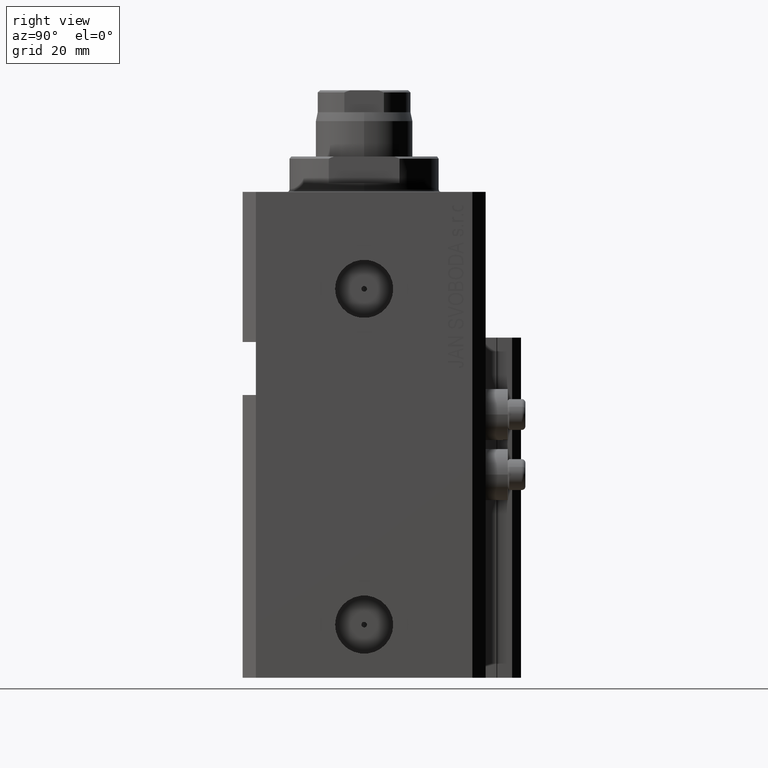
[diagram: clean part render]
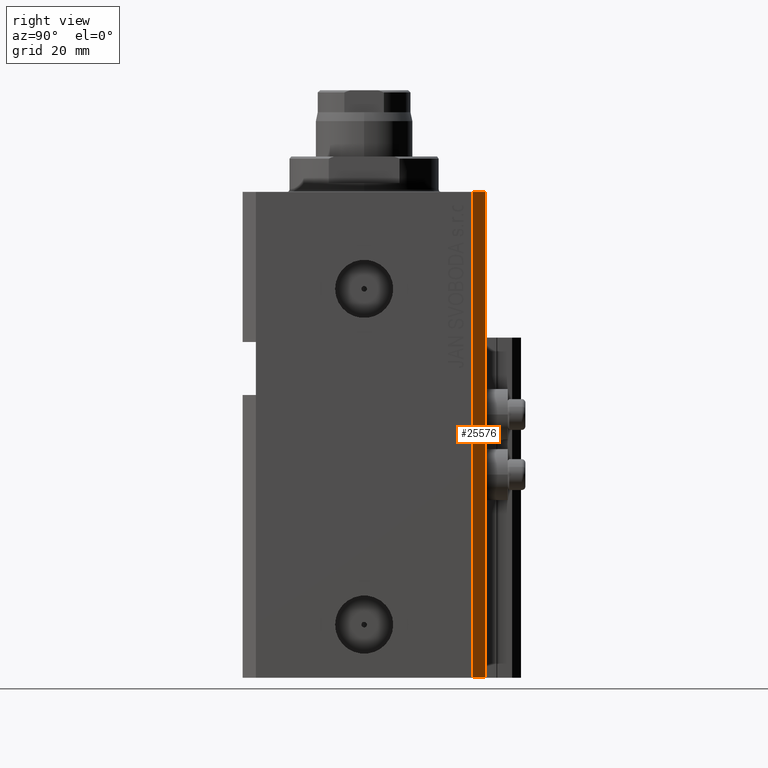
[diagram: same view with one face highlighted and labeled with its STEP entity id]
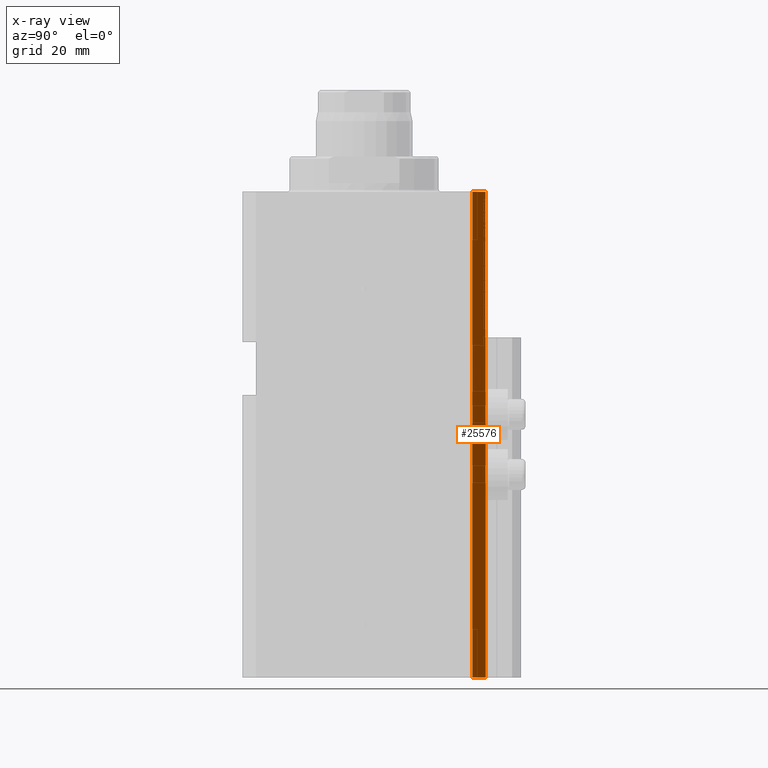
[diagram: x-ray of the same camera — body ghosted, the highlighted face saturated]
A machine part, right view. The second image highlights one B-rep face of the part: STEP entity #25576.
The next image is the same camera in x-ray: the body ghosted, the highlighted face saturated — about 0% of this face is hidden behind the body in this view.
In plain terms, the highlighted planar face has unit normal (0.7071, 0.7071, 0).
Its self-contained STEP definition (entity closure, byte-faithful):
#315 = VECTOR ( 'NONE', #17482, 1000.000000000000114 ) ;
#565 = DIRECTION ( 'NONE',  ( 0.7071067811865594521, 0.7071067811865356934, -0.000000000000000000 ) ) ;
#1001 = EDGE_CURVE ( 'NONE', #20753, #4024, #32799, .T. ) ;
#2066 = EDGE_CURVE ( 'NONE', #20753, #31014, #21410, .T. ) ;
#2521 = ORIENTED_EDGE ( 'NONE', *, *, #31119, .F. ) ;
#4024 = VERTEX_POINT ( 'NONE', #43305 ) ;
#4395 = CARTESIAN_POINT ( 'NONE',  ( 37.50000000000051870, 24.49999999999995381, -110.0000000000000000 ) ) ;
#6186 = CARTESIAN_POINT ( 'NONE',  ( 34.50000000000056843, 27.50000000000000000, 0.000000000000000000 ) ) ;
#6412 = CARTESIAN_POINT ( 'NONE',  ( 34.50000000000056843, 27.50000000000000000, -110.0000000000000000 ) ) ;
#7666 = DIRECTION ( 'NONE',  ( -0.7071067811865356934, 0.7071067811865594521, 0.000000000000000000 ) ) ;
#11203 = FACE_OUTER_BOUND ( 'NONE', #42202, .T. ) ;
#14813 = DIRECTION ( 'NONE',  ( 0.000000000000000000, 0.000000000000000000, 1.000000000000000000 ) ) ;
#17482 = DIRECTION ( 'NONE',  ( -0.7071067811865356934, 0.7071067811865594521, 0.000000000000000000 ) ) ;
#17684 = VECTOR ( 'NONE', #14813, 1000.000000000000000 ) ;
#20753 = VERTEX_POINT ( 'NONE', #32388 ) ;
#21410 = LINE ( 'NONE', #40325, #28291 ) ;
#25576 = ADVANCED_FACE ( 'NONE', ( #11203 ), #40788, .T. ) ;
#26110 = CARTESIAN_POINT ( 'NONE',  ( 37.50000000000051870, 24.49999999999995381, -110.0000000000000000 ) ) ;
#27777 = ORIENTED_EDGE ( 'NONE', *, *, #35516, .T. ) ;
#28029 = ORIENTED_EDGE ( 'NONE', *, *, #2066, .T. ) ;
#28291 = VECTOR ( 'NONE', #32748, 1000.000000000000114 ) ;
#28965 = AXIS2_PLACEMENT_3D ( 'NONE', #26110, #565, #7666 ) ;
#30782 = LINE ( 'NONE', #6412, #41324 ) ;
#31014 = VERTEX_POINT ( 'NONE', #36204 ) ;
#31119 = EDGE_CURVE ( 'NONE', #4024, #38099, #34750, .T. ) ;
#31203 = CARTESIAN_POINT ( 'NONE',  ( 37.50000000000051870, 24.49999999999995381, 0.000000000000000000 ) ) ;
#32388 = CARTESIAN_POINT ( 'NONE',  ( 37.50000000000051870, 24.49999999999995381, -110.0000000000000000 ) ) ;
#32748 = DIRECTION ( 'NONE',  ( -0.7071067811865356934, 0.7071067811865594521, 0.000000000000000000 ) ) ;
#32799 = LINE ( 'NONE', #4395, #17684 ) ;
#34750 = LINE ( 'NONE', #31203, #315 ) ;
#35039 = DIRECTION ( 'NONE',  ( 0.000000000000000000, 0.000000000000000000, 1.000000000000000000 ) ) ;
#35516 = EDGE_CURVE ( 'NONE', #31014, #38099, #30782, .T. ) ;
#36204 = CARTESIAN_POINT ( 'NONE',  ( 34.50000000000056843, 27.50000000000000000, -110.0000000000000000 ) ) ;
#38099 = VERTEX_POINT ( 'NONE', #6186 ) ;
#39354 = ORIENTED_EDGE ( 'NONE', *, *, #1001, .F. ) ;
#40325 = CARTESIAN_POINT ( 'NONE',  ( 37.50000000000051870, 24.49999999999995381, -110.0000000000000000 ) ) ;
#40788 = PLANE ( 'NONE',  #28965 ) ;
#41324 = VECTOR ( 'NONE', #35039, 1000.000000000000000 ) ;
#42202 = EDGE_LOOP ( 'NONE', ( #2521, #39354, #28029, #27777 ) ) ;
#43305 = CARTESIAN_POINT ( 'NONE',  ( 37.50000000000051870, 24.49999999999995381, 0.000000000000000000 ) ) ;